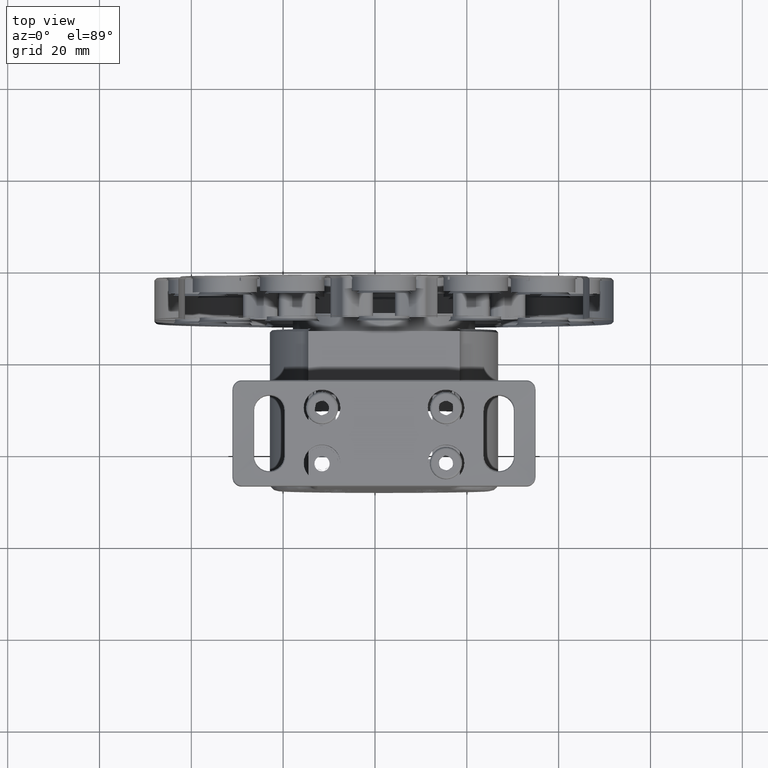
[diagram: clean part render]
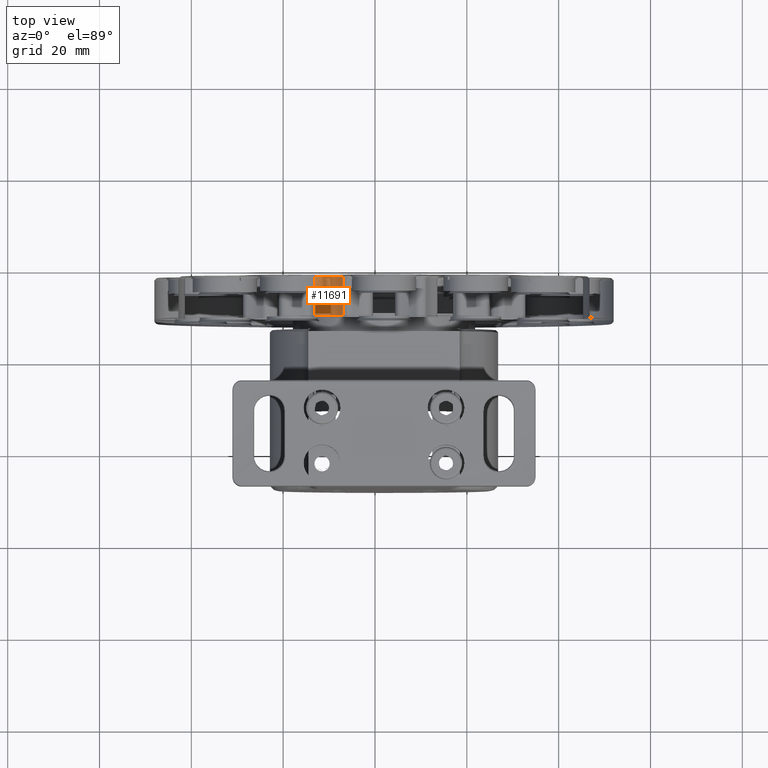
[diagram: same view with one face highlighted and labeled with its STEP entity id]
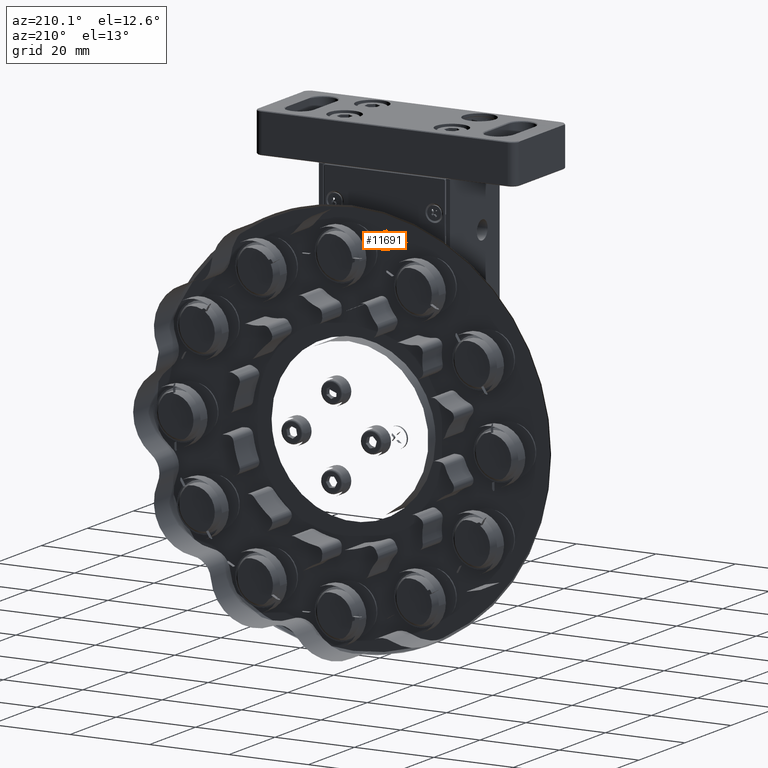
[diagram: same view with one face highlighted and labeled with its STEP entity id]
A machine part, top view. The second image highlights one B-rep face of the part: STEP entity #11691.
A second angle (auxiliary view) of the same face is appended — the face is thin or edge-on in the first view.
In plain terms, the highlighted cylindrical surface (edge-blend (fillet) strip) has radius 5 mm, axis along (0, -1, 0).
Its self-contained STEP definition (entity closure, byte-faithful):
#401 = VERTEX_POINT ( 'NONE', #13786 ) ;
#889 = LINE ( 'NONE', #25951, #17283 ) ;
#1323 = AXIS2_PLACEMENT_3D ( 'NONE', #4071, #18005, #19822 ) ;
#2059 = EDGE_CURVE ( 'NONE', #18020, #28105, #16632, .T. ) ;
#2100 = CIRCLE ( 'NONE', #4026, 4.999999999999997335 ) ;
#4026 = AXIS2_PLACEMENT_3D ( 'NONE', #8666, #6283, #13309 ) ;
#4071 = CARTESIAN_POINT ( 'NONE',  ( -31.00072523372593380, 37.48610521441030130, 118.3786901301067189 ) ) ;
#6283 = DIRECTION ( 'NONE',  ( -3.488278094132890012E-29, 1.000000000000000000, -0.000000000000000000 ) ) ;
#6685 = VERTEX_POINT ( 'NONE', #7391 ) ;
#7391 = CARTESIAN_POINT ( 'NONE',  ( -33.04352806145242738, 28.98610521441032262, 113.8150340730585413 ) ) ;
#8109 = FACE_OUTER_BOUND ( 'NONE', #9933, .T. ) ;
#8554 = CYLINDRICAL_SURFACE ( 'NONE', #18970, 4.999999999999997335 ) ;
#8666 = CARTESIAN_POINT ( 'NONE',  ( -31.00072523372593380, 28.98610521441032617, 118.3786901301067189 ) ) ;
#9933 = EDGE_LOOP ( 'NONE', ( #26174, #15127, #27489, #19434 ) ) ;
#10099 = CARTESIAN_POINT ( 'NONE',  ( -26.94977806147214139, 37.48610521438956766, 115.4478494644582014 ) ) ;
#11691 = ADVANCED_FACE ( 'NONE', ( #8109 ), #8554, .T. ) ;
#13309 = DIRECTION ( 'NONE',  ( 1.000000000000000000, 0.000000000000000000, 0.000000000000000000 ) ) ;
#13527 = CARTESIAN_POINT ( 'NONE',  ( -26.94977806145582022, 28.98610521441032262, 115.4478494644483533 ) ) ;
#13786 = CARTESIAN_POINT ( 'NONE',  ( -33.04352806145242738, 37.48610521441030130, 113.8150340730585413 ) ) ;
#13847 = EDGE_CURVE ( 'NONE', #401, #18020, #25293, .T. ) ;
#15127 = ORIENTED_EDGE ( 'NONE', *, *, #2059, .T. ) ;
#16632 = LINE ( 'NONE', #24107, #16965 ) ;
#16965 = VECTOR ( 'NONE', #28615, 1000.000000000000000 ) ;
#17283 = VECTOR ( 'NONE', #28354, 1000.000000000000000 ) ;
#18005 = DIRECTION ( 'NONE',  ( 3.488278094132890012E-29, -1.000000000000000000, 0.000000000000000000 ) ) ;
#18020 = VERTEX_POINT ( 'NONE', #10099 ) ;
#18970 = AXIS2_PLACEMENT_3D ( 'NONE', #26867, #24164, #24313 ) ;
#19434 = ORIENTED_EDGE ( 'NONE', *, *, #22794, .T. ) ;
#19746 = EDGE_CURVE ( 'NONE', #28105, #6685, #2100, .T. ) ;
#19822 = DIRECTION ( 'NONE',  ( 1.000000000000000000, 0.000000000000000000, 0.000000000000000000 ) ) ;
#22794 = EDGE_CURVE ( 'NONE', #6685, #401, #889, .T. ) ;
#24107 = CARTESIAN_POINT ( 'NONE',  ( -26.94977806145582377, 28.98610521441032617, 115.4478494644483533 ) ) ;
#24164 = DIRECTION ( 'NONE',  ( 3.488278094132890012E-29, -1.000000000000000000, 0.000000000000000000 ) ) ;
#24313 = DIRECTION ( 'NONE',  ( 1.000000000000000000, 0.000000000000000000, 0.000000000000000000 ) ) ;
#25293 = CIRCLE ( 'NONE', #1323, 4.999999999999997335 ) ;
#25951 = CARTESIAN_POINT ( 'NONE',  ( -33.04352806145242738, 28.98610521441032617, 113.8150340730585270 ) ) ;
#26174 = ORIENTED_EDGE ( 'NONE', *, *, #13847, .T. ) ;
#26867 = CARTESIAN_POINT ( 'NONE',  ( -31.00072523372593380, 28.98610521441032617, 118.3786901301067189 ) ) ;
#27489 = ORIENTED_EDGE ( 'NONE', *, *, #19746, .T. ) ;
#28105 = VERTEX_POINT ( 'NONE', #13527 ) ;
#28354 = DIRECTION ( 'NONE',  ( -3.488278094132890012E-29, 1.000000000000000000, 0.000000000000000000 ) ) ;
#28615 = DIRECTION ( 'NONE',  ( 3.488278094132890012E-29, -1.000000000000000000, 0.000000000000000000 ) ) ;